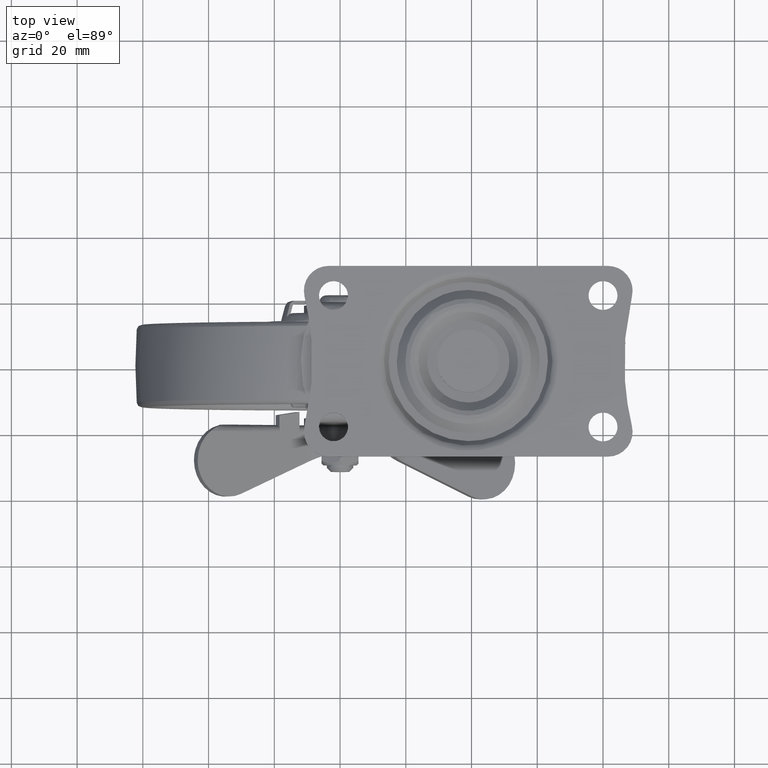
[diagram: clean part render]
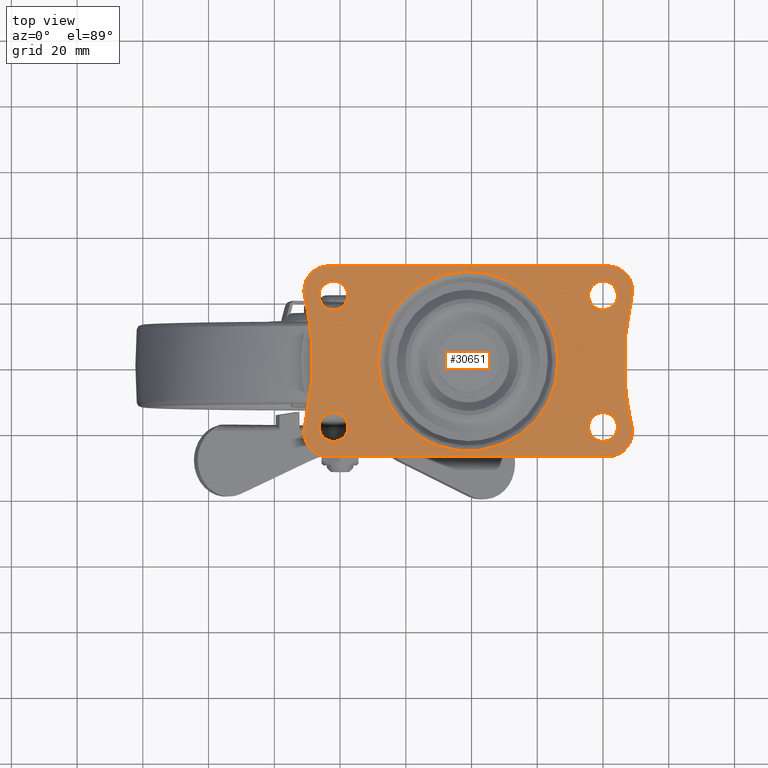
[diagram: same view with one face highlighted and labeled with its STEP entity id]
A machine part, top view. The second image highlights one B-rep face of the part: STEP entity #30651.
In plain terms, the highlighted face is a freeform B-spline surface patch.
Its self-contained STEP definition (entity closure, byte-faithful):
#26265=CARTESIAN_POINT('',(-4.972597613774385,23.244021207794479,85.500000000000000));
#26266=VERTEX_POINT('',#26265);
#26272=CARTESIAN_POINT('',(-6.400000000000000,20.0,85.500000000000000));
#26273=VERTEX_POINT('',#26272);
#26274=CARTESIAN_POINT('',(-4.972597613774385,23.244021207794479,85.500000000000000));
#26275=CARTESIAN_POINT('',(-5.393285155727978,22.859332881393559,85.499999999999929));
#26276=CARTESIAN_POINT('',(-6.126944385767979,21.861011191083119,85.500000000000000));
#26277=CARTESIAN_POINT('',(-6.401025243646099,20.646127910452002,85.500000000000142));
#26278=CARTESIAN_POINT('',(-6.400000000000000,20.0,85.500000000000000));
#26279=B_SPLINE_CURVE_WITH_KNOTS('',3,(#26274,#26275,#26276,#26277,#26278),.UNSPECIFIED.,.F.,.U.,(4,1,4),(0.000000100462238,1.709942680757175,3.647840710718621),.UNSPECIFIED.);
#26280=EDGE_CURVE('',#26266,#26273,#26279,.T.);
#26282=CARTESIAN_POINT('',(-1.999995359596425,15.600000000002449,85.500000000000000));
#26283=VERTEX_POINT('',#26282);
#26284=CARTESIAN_POINT('',(-6.400000000000000,20.0,85.500000000000000));
#26285=CARTESIAN_POINT('',(-6.401058096501203,19.351824670858552,85.499999999999972));
#26286=CARTESIAN_POINT('',(-6.181251046900533,18.380831884591942,85.500000000000099));
#26287=CARTESIAN_POINT('',(-5.516009738540491,17.301759607233471,85.500000000000057));
#26288=CARTESIAN_POINT('',(-4.767894267445042,16.515692348303030,85.499999999999872));
#26289=CARTESIAN_POINT('',(-3.619599102942595,15.807933617418540,85.499999999999943));
#26290=CARTESIAN_POINT('',(-2.576010479614628,15.599416306583141,85.499999999999957));
#26291=CARTESIAN_POINT('',(-1.999995359596425,15.600000000002449,85.500000000000000));
#26292=B_SPLINE_CURVE_WITH_KNOTS('',3,(#26284,#26285,#26286,#26287,#26288,#26289,#26290,#26291),.UNSPECIFIED.,.F.,.U.,(4,1,1,1,1,4),(0.000000453790209,1.943913193949037,2.915876060195883,3.779744292028530,5.183760033784806,6.911679890577998),.UNSPECIFIED.);
#26293=EDGE_CURVE('',#26273,#26283,#26292,.T.);
#26295=CARTESIAN_POINT('',(2.400000000000000,20.0,85.500000000000000));
#26296=VERTEX_POINT('',#26295);
#26297=CARTESIAN_POINT('',(-1.999995359596425,15.600000000002449,85.500000000000000));
#26298=CARTESIAN_POINT('',(-1.604018796670275,15.599859424816650,85.499999999999844));
#26299=CARTESIAN_POINT('',(-0.848138780554023,15.702749843455379,85.500000000000298));
#26300=CARTESIAN_POINT('',(0.123630603866510,16.105242926993100,85.499999999999758));
#26301=CARTESIAN_POINT('',(1.010910588933266,16.730059546941678,85.500000000000341));
#26302=CARTESIAN_POINT('',(1.700145158964369,17.529082206929210,85.499999999999829));
#26303=CARTESIAN_POINT('',(2.256097337983337,18.668315929265560,85.500000000000171));
#26304=CARTESIAN_POINT('',(2.400373835175241,19.495981843009730,85.499999999999872));
#26305=CARTESIAN_POINT('',(2.400000000000000,20.0,85.500000000000000));
#26306=B_SPLINE_CURVE_WITH_KNOTS('',3,(#26297,#26298,#26299,#26300,#26301,#26302,#26303,#26304,#26305),.UNSPECIFIED.,.F.,.U.,(4,1,1,1,1,1,4),(0.000000460141260,1.187911865419256,2.267926155748829,3.131933689348136,4.427776626393058,5.399748828108492,6.911674659631110),.UNSPECIFIED.);
#26307=EDGE_CURVE('',#26283,#26296,#26306,.T.);
#26309=CARTESIAN_POINT('',(1.068699980584120,23.153263424461141,85.500000000000000));
#26310=VERTEX_POINT('',#26309);
#26311=CARTESIAN_POINT('',(2.400000000000000,20.0,85.500000000000000));
#26312=CARTESIAN_POINT('',(2.400493743976085,20.549377756810522,85.500000000000114));
#26313=CARTESIAN_POINT('',(2.177581816635315,21.720832379546231,85.499999999999929));
#26314=CARTESIAN_POINT('',(1.515493619946017,22.719570130415029,85.500000000000071));
#26315=CARTESIAN_POINT('',(1.068699980584120,23.153263424461141,85.500000000000000));
#26316=B_SPLINE_CURVE_WITH_KNOTS('',3,(#26311,#26312,#26313,#26314,#26315),.UNSPECIFIED.,.F.,.U.,(4,1,4),(0.000000119753321,1.647984335365170,3.515639993694573),.UNSPECIFIED.);
#26317=EDGE_CURVE('',#26296,#26310,#26316,.T.);
#26352=CARTESIAN_POINT('',(-2.000004640403567,24.399999999997561,85.500000000000000));
#26353=VERTEX_POINT('',#26352);
#26354=CARTESIAN_POINT('',(1.068699980584120,23.153263424461141,85.500000000000000));
#26355=CARTESIAN_POINT('',(0.688663337831301,23.523663209160780,85.499999999999957));
#26356=CARTESIAN_POINT('',(-0.267212886981123,24.164005809754961,85.500000000000384));
#26357=CARTESIAN_POINT('',(-1.398533441181969,24.400752617487932,85.499999999999773));
#26358=CARTESIAN_POINT('',(-2.000004640403567,24.399999999997561,85.500000000000000));
#26359=B_SPLINE_CURVE_WITH_KNOTS('',3,(#26354,#26355,#26356,#26357,#26358),.UNSPECIFIED.,.F.,.U.,(4,1,4),(0.000000100950116,1.591919649958460,3.396041165370638),.UNSPECIFIED.);
#26360=EDGE_CURVE('',#26310,#26353,#26359,.T.);
#26362=CARTESIAN_POINT('',(-2.000004640403567,24.399999999997561,85.500000000000000));
#26363=CARTESIAN_POINT('',(-2.578060384997252,24.400681831259728,85.500000000000341));
#26364=CARTESIAN_POINT('',(-3.665374584005662,24.182233476178460,85.499999999999446));
#26365=CARTESIAN_POINT('',(-4.596828426506486,23.588872447011049,85.500000000000426));
#26366=CARTESIAN_POINT('',(-4.972597613774385,23.244021207794479,85.500000000000000));
#26367=B_SPLINE_CURVE_WITH_KNOTS('',3,(#26362,#26363,#26364,#26365,#26366),.UNSPECIFIED.,.F.,.U.,(4,1,4),(0.000000111657461,1.733879555445315,3.263834434709195),.UNSPECIFIED.);
#26368=EDGE_CURVE('',#26353,#26266,#26367,.T.);
#26457=CARTESIAN_POINT('',(77.027394386225609,23.244021207794479,85.500000000000000));
#26458=VERTEX_POINT('',#26457);
#26464=CARTESIAN_POINT('',(75.599992000000000,20.0,85.500000000000000));
#26465=VERTEX_POINT('',#26464);
#26466=CARTESIAN_POINT('',(77.027394386225609,23.244021207794479,85.500000000000000));
#26467=CARTESIAN_POINT('',(76.606706838514214,22.859332568886099,85.499999999999886));
#26468=CARTESIAN_POINT('',(75.873047676994702,21.861011595931860,85.500000000000242));
#26469=CARTESIAN_POINT('',(75.598966784040044,20.646127809803801,85.499999999999886));
#26470=CARTESIAN_POINT('',(75.599992000000000,20.0,85.500000000000000));
#26471=B_SPLINE_CURVE_WITH_KNOTS('',3,(#26466,#26467,#26468,#26469,#26470),.UNSPECIFIED.,.F.,.U.,(4,1,4),(0.000000100463556,1.709942680757738,3.647840710718600),.UNSPECIFIED.);
#26472=EDGE_CURVE('',#26458,#26465,#26471,.T.);
#26474=CARTESIAN_POINT('',(79.999996640403580,15.600000000002449,85.500000000000000));
#26475=VERTEX_POINT('',#26474);
#26476=CARTESIAN_POINT('',(75.599992000000000,20.0,85.500000000000000));
#26477=CARTESIAN_POINT('',(75.599783752835179,19.532010594136970,85.500000000000028));
#26478=CARTESIAN_POINT('',(75.756373504388080,18.560231574206359,85.500000000000085));
#26479=CARTESIAN_POINT('',(76.462212483641480,17.239033719432911,85.499999999999773));
#26480=CARTESIAN_POINT('',(77.463910273512141,16.331570671551098,85.500000000000369));
#26481=CARTESIAN_POINT('',(78.668322605253394,15.743909639353211,85.499999999999574));
#26482=CARTESIAN_POINT('',(79.495975399131112,15.599628591205510,85.500000000000270));
#26483=CARTESIAN_POINT('',(79.999996640403580,15.600000000002449,85.500000000000000));
#26484=B_SPLINE_CURVE_WITH_KNOTS('',3,(#26476,#26477,#26478,#26479,#26480,#26481,#26482,#26483),.UNSPECIFIED.,.F.,.U.,(4,1,1,1,1,4),(0.000000453782085,1.403923765613697,2.915876060193221,4.427779982945244,5.399752912186087,6.911679890577974),.UNSPECIFIED.);
#26485=EDGE_CURVE('',#26465,#26475,#26484,.T.);
#26487=CARTESIAN_POINT('',(84.399992000000012,20.0,85.500000000000000));
#26488=VERTEX_POINT('',#26487);
#26489=CARTESIAN_POINT('',(79.999996640403580,15.600000000002449,85.500000000000000));
#26490=CARTESIAN_POINT('',(80.576052455176310,15.599465771141871,85.500000000000043));
#26491=CARTESIAN_POINT('',(81.475492152860198,15.779279810999800,85.499999999999829));
#26492=CARTESIAN_POINT('',(82.713048846329400,16.460464747852988,85.499999999999929));
#26493=CARTESIAN_POINT('',(83.591298872677669,17.338561865424460,85.500000000000426));
#26494=CARTESIAN_POINT('',(84.243637017796360,18.596281492250171,85.499999999999389));
#26495=CARTESIAN_POINT('',(84.400323596427768,19.496006144316130,85.500000000000227));
#26496=CARTESIAN_POINT('',(84.399992000000012,20.0,85.500000000000000));
#26497=B_SPLINE_CURVE_WITH_KNOTS('',3,(#26489,#26490,#26491,#26492,#26493,#26494,#26495,#26496),.UNSPECIFIED.,.F.,.U.,(4,1,1,1,1,4),(0.000000460139663,1.727919010387877,2.699934121718611,4.211740996627755,5.399748828107682,6.911674659631200),.UNSPECIFIED.);
#26498=EDGE_CURVE('',#26475,#26488,#26497,.T.);
#26500=CARTESIAN_POINT('',(83.068691980584134,23.153263424461141,85.500000000000000));
#26501=VERTEX_POINT('',#26500);
#26502=CARTESIAN_POINT('',(84.399992000000012,20.0,85.500000000000000));
#26503=CARTESIAN_POINT('',(84.400146674911355,20.402847568519270,85.500000000000099));
#26504=CARTESIAN_POINT('',(84.303722709488241,21.098517536157619,85.499999999999915));
#26505=CARTESIAN_POINT('',(83.872965402624317,22.194660361078331,85.500000000000014));
#26506=CARTESIAN_POINT('',(83.410070792888320,22.821389295342790,85.500000000000171));
#26507=CARTESIAN_POINT('',(83.068691980584134,23.153263424461141,85.500000000000000));
#26508=B_SPLINE_CURVE_WITH_KNOTS('',3,(#26502,#26503,#26504,#26505,#26506,#26507),.UNSPECIFIED.,.F.,.U.,(4,1,1,4),(0.000000119753823,1.208505856130416,2.087379452037267,3.515639993694564),.UNSPECIFIED.);
#26509=EDGE_CURVE('',#26488,#26501,#26508,.T.);
#26545=CARTESIAN_POINT('',(79.999987359596446,24.399999999997551,85.500000000000000));
#26546=VERTEX_POINT('',#26545);
#26547=CARTESIAN_POINT('',(83.068691980584134,23.153263424461141,85.500000000000000));
#26548=CARTESIAN_POINT('',(82.688681855210334,23.523704755354370,85.500000000000028));
#26549=CARTESIAN_POINT('',(81.732738083774407,24.163942014817991,85.499999999999886));
#26550=CARTESIAN_POINT('',(80.601474631195003,24.400774931589758,85.500000000000071));
#26551=CARTESIAN_POINT('',(79.999987359596446,24.399999999997551,85.500000000000000));
#26552=B_SPLINE_CURVE_WITH_KNOTS('',3,(#26547,#26548,#26549,#26550,#26551),.UNSPECIFIED.,.F.,.U.,(4,1,4),(0.000000100947136,1.591919649957689,3.396041165370644),.UNSPECIFIED.);
#26553=EDGE_CURVE('',#26501,#26546,#26552,.T.);
#26555=CARTESIAN_POINT('',(79.999987359596446,24.399999999997551,85.500000000000000));
#26556=CARTESIAN_POINT('',(79.489968708727616,24.400340292029199,85.499999999999972));
#26557=CARTESIAN_POINT('',(78.402344904631519,24.208649726634761,85.500000000000099));
#26558=CARTESIAN_POINT('',(77.453134321402146,23.635013190940711,85.499999999999943));
#26559=CARTESIAN_POINT('',(77.027394386225609,23.244021207794479,85.500000000000000));
#26560=B_SPLINE_CURVE_WITH_KNOTS('',3,(#26555,#26556,#26557,#26558,#26559),.UNSPECIFIED.,.F.,.U.,(4,1,4),(0.000000111657821,1.529954990833674,3.263834434709202),.UNSPECIFIED.);
#26561=EDGE_CURVE('',#26546,#26458,#26560,.T.);
#26652=CARTESIAN_POINT('',(-4.972597613774383,-16.755978792205529,85.500000000000000));
#26653=VERTEX_POINT('',#26652);
#26659=CARTESIAN_POINT('',(-6.400000000000000,-20.0,85.500000000000000));
#26660=VERTEX_POINT('',#26659);
#26661=CARTESIAN_POINT('',(-4.972597613774383,-16.755978792205529,85.500000000000000));
#26662=CARTESIAN_POINT('',(-5.393286779606871,-17.140668381612699,85.499999999999957));
#26663=CARTESIAN_POINT('',(-6.126938753429259,-18.138988280292811,85.499999999999929));
#26664=CARTESIAN_POINT('',(-6.401030044556166,-19.353871961900801,85.500000000000199));
#26665=CARTESIAN_POINT('',(-6.400000000000000,-20.0,85.500000000000000));
#26666=B_SPLINE_CURVE_WITH_KNOTS('',3,(#26661,#26662,#26663,#26664,#26665),.UNSPECIFIED.,.F.,.U.,(4,1,4),(0.000000100462849,1.709942680757579,3.647840710718623),.UNSPECIFIED.);
#26667=EDGE_CURVE('',#26653,#26660,#26666,.T.);
#26669=CARTESIAN_POINT('',(-1.999995359596422,-24.399999999997551,85.500000000000000));
#26670=VERTEX_POINT('',#26669);
#26671=CARTESIAN_POINT('',(-6.400000000000000,-20.0,85.500000000000000));
#26672=CARTESIAN_POINT('',(-6.400140211704484,-20.395980939981939,85.500000000000128));
#26673=CARTESIAN_POINT('',(-6.297253674191180,-21.151858316100071,85.500000000000000));
#26674=CARTESIAN_POINT('',(-5.894756893337026,-22.123631918175700,85.499999999999957));
#26675=CARTESIAN_POINT('',(-5.311548080003965,-22.951677402191109,85.499999999999972));
#26676=CARTESIAN_POINT('',(-4.666614052868426,-23.536228440149969,85.500000000000313));
#26677=CARTESIAN_POINT('',(-3.861636479743811,-24.018686656684181,85.499999999999488));
#26678=CARTESIAN_POINT('',(-3.007931381503614,-24.324180586071598,85.500000000000014));
#26679=CARTESIAN_POINT('',(-2.323964327101548,-24.400043016554250,85.500000000000114));
#26680=CARTESIAN_POINT('',(-1.999995359596422,-24.399999999997551,85.500000000000000));
#26681=B_SPLINE_CURVE_WITH_KNOTS('',3,(#26671,#26672,#26673,#26674,#26675,#26676,#26677,#26678,#26679,#26680),.UNSPECIFIED.,.F.,.U.,(4,1,1,1,1,1,1,4),(0.000000453789881,1.187912758830450,2.267927866002376,3.131936056362451,4.211744186620757,4.859763486358876,5.939740086029179,6.911679890578010),.UNSPECIFIED.);
#26682=EDGE_CURVE('',#26660,#26670,#26681,.T.);
#26684=CARTESIAN_POINT('',(2.400000000000000,-20.0,85.500000000000000));
#26685=VERTEX_POINT('',#26684);
#26686=CARTESIAN_POINT('',(-1.999995359596422,-24.399999999997551,85.500000000000000));
#26687=CARTESIAN_POINT('',(-1.604018070988030,-24.400140002645202,85.499999999999915));
#26688=CARTESIAN_POINT('',(-0.848138092286618,-24.297252546750151,85.500000000000171));
#26689=CARTESIAN_POINT('',(0.123644327151811,-23.894768202028850,85.499999999999872));
#26690=CARTESIAN_POINT('',(0.892517140393625,-23.353169592628539,85.500000000000469));
#26691=CARTESIAN_POINT('',(1.491100020361700,-22.724459387603780,85.499999999999332));
#26692=CARTESIAN_POINT('',(1.994275285402152,-21.929939717295252,85.500000000000384));
#26693=CARTESIAN_POINT('',(2.324175806366636,-21.007928525039169,85.500000000000199));
#26694=CARTESIAN_POINT('',(2.400043798904586,-20.323970120633241,85.499999999999716));
#26695=CARTESIAN_POINT('',(2.400000000000000,-20.0,85.500000000000000));
#26696=B_SPLINE_CURVE_WITH_KNOTS('',3,(#26686,#26687,#26688,#26689,#26690,#26691,#26692,#26693,#26694,#26695),.UNSPECIFIED.,.F.,.U.,(4,1,1,1,1,1,1,4),(0.000000460142672,1.187911865420515,2.267926155749878,3.131933689348963,3.995801264283309,4.859759805274024,5.939735586911391,6.911674659631111),.UNSPECIFIED.);
#26697=EDGE_CURVE('',#26670,#26685,#26696,.T.);
#26699=CARTESIAN_POINT('',(1.068699980584120,-16.846736575538859,85.500000000000000));
#26700=VERTEX_POINT('',#26699);
#26701=CARTESIAN_POINT('',(2.400000000000000,-20.0,85.500000000000000));
#26702=CARTESIAN_POINT('',(2.400512308151452,-19.450608044643189,85.500000000000099));
#26703=CARTESIAN_POINT('',(2.177493738186855,-18.279221008446459,85.500000000000057));
#26704=CARTESIAN_POINT('',(1.515569693957696,-17.280379712169228,85.499999999999886));
#26705=CARTESIAN_POINT('',(1.068699980584120,-16.846736575538859,85.500000000000000));
#26706=B_SPLINE_CURVE_WITH_KNOTS('',3,(#26701,#26702,#26703,#26704,#26705),.UNSPECIFIED.,.F.,.U.,(4,1,4),(0.000000119753361,1.647984335365448,3.515639993694568),.UNSPECIFIED.);
#26707=EDGE_CURVE('',#26685,#26700,#26706,.T.);
#26742=CARTESIAN_POINT('',(-2.000004640403565,-15.600000000002449,85.500000000000000));
#26743=VERTEX_POINT('',#26742);
#26744=CARTESIAN_POINT('',(1.068699980584120,-16.846736575538859,85.500000000000000));
#26745=CARTESIAN_POINT('',(0.688690019800661,-16.476294787650680,85.499999999999773));
#26746=CARTESIAN_POINT('',(-0.267253139788307,-15.836058840220209,85.500000000000583));
#26747=CARTESIAN_POINT('',(-1.398518630204080,-15.599224702613251,85.499999999999616));
#26748=CARTESIAN_POINT('',(-2.000004640403565,-15.600000000002449,85.500000000000000));
#26749=B_SPLINE_CURVE_WITH_KNOTS('',3,(#26744,#26745,#26746,#26747,#26748),.UNSPECIFIED.,.F.,.U.,(4,1,4),(0.000000100950109,1.591919649958433,3.396041165370634),.UNSPECIFIED.);
#26750=EDGE_CURVE('',#26700,#26743,#26749,.T.);
#26752=CARTESIAN_POINT('',(-2.000004640403565,-15.600000000002449,85.500000000000000));
#26753=CARTESIAN_POINT('',(-2.578042558163824,-15.599361540187410,85.499999999999957));
#26754=CARTESIAN_POINT('',(-3.665417967432006,-15.817701058541161,85.499999999999986));
#26755=CARTESIAN_POINT('',(-4.596802162024966,-16.411165451788339,85.500000000000085));
#26756=CARTESIAN_POINT('',(-4.972597613774383,-16.755978792205529,85.500000000000000));
#26757=B_SPLINE_CURVE_WITH_KNOTS('',3,(#26752,#26753,#26754,#26755,#26756),.UNSPECIFIED.,.F.,.U.,(4,1,4),(0.000000111657518,1.733879555445327,3.263834434709199),.UNSPECIFIED.);
#26758=EDGE_CURVE('',#26743,#26653,#26757,.T.);
#26850=CARTESIAN_POINT('',(77.027394386225609,-16.755978792205529,85.500000000000000));
#26851=VERTEX_POINT('',#26850);
#26857=CARTESIAN_POINT('',(75.599992000000000,-20.0,85.500000000000000));
#26858=VERTEX_POINT('',#26857);
#26859=CARTESIAN_POINT('',(77.027394386225609,-16.755978792205529,85.500000000000000));
#26860=CARTESIAN_POINT('',(76.662907947195350,-17.089477146961482,85.500000000000099));
#26861=CARTESIAN_POINT('',(76.261370046748283,-17.607041494472131,85.499999999999957));
#26862=CARTESIAN_POINT('',(75.742203787019477,-18.708426262585469,85.499999999999915));
#26863=CARTESIAN_POINT('',(75.599379548711752,-19.429906369728549,85.500000000000000));
#26864=CARTESIAN_POINT('',(75.599992000000000,-20.0,85.500000000000000));
#26865=B_SPLINE_CURVE_WITH_KNOTS('',3,(#26859,#26860,#26861,#26862,#26863,#26864),.UNSPECIFIED.,.F.,.U.,(4,1,1,4),(0.000000100461842,1.481963510159120,1.937896383616773,3.647840710718633),.UNSPECIFIED.);
#26866=EDGE_CURVE('',#26851,#26858,#26865,.T.);
#26868=CARTESIAN_POINT('',(79.999996640403566,-24.399999999997551,85.500000000000000));
#26869=VERTEX_POINT('',#26868);
#26870=CARTESIAN_POINT('',(75.599992000000000,-20.0,85.500000000000000));
#26871=CARTESIAN_POINT('',(75.599401197827078,-20.576044114681121,85.500000000000185));
#26872=CARTESIAN_POINT('',(75.793647321303681,-21.547518305552380,85.499999999999432));
#26873=CARTESIAN_POINT('',(76.434026537312704,-22.645893017741471,85.500000000000753));
#26874=CARTESIAN_POINT('',(77.107489817710146,-23.353171223380748,85.499999999998806));
#26875=CARTESIAN_POINT('',(77.876355866778283,-23.894766134225531,85.500000000000924));
#26876=CARTESIAN_POINT('',(78.848139201716492,-24.297250443257418,85.500000000000227));
#26877=CARTESIAN_POINT('',(79.604015734593261,-24.400146807299851,85.499999999999204));
#26878=CARTESIAN_POINT('',(79.999996640403566,-24.399999999997551,85.500000000000000));
#26879=B_SPLINE_CURVE_WITH_KNOTS('',3,(#26870,#26871,#26872,#26873,#26874,#26875,#26876,#26877,#26878),.UNSPECIFIED.,.F.,.U.,(4,1,1,1,1,1,4),(0.000000453793261,1.727920312613144,2.915876060197656,3.779744292029767,4.643752479137986,5.723767586565645,6.911679890577959),.UNSPECIFIED.);
#26880=EDGE_CURVE('',#26858,#26869,#26879,.T.);
#26882=CARTESIAN_POINT('',(84.399992000000012,-20.0,85.500000000000000));
#26883=VERTEX_POINT('',#26882);
#26884=CARTESIAN_POINT('',(79.999996640403566,-24.399999999997551,85.500000000000000));
#26885=CARTESIAN_POINT('',(80.395973019348247,-24.400144609510281,85.500000000000043));
#26886=CARTESIAN_POINT('',(81.079817637586231,-24.306971348522929,85.500000000000000));
#26887=CARTESIAN_POINT('',(82.193684587907271,-23.877681147667271,85.500000000000043));
#26888=CARTESIAN_POINT('',(83.073861420797172,-23.224876407859529,85.499999999999957));
#26889=CARTESIAN_POINT('',(83.718997646751419,-22.397660666242150,85.500000000000028));
#26890=CARTESIAN_POINT('',(84.235003165071646,-21.403508346547952,85.499999999999929));
#26891=CARTESIAN_POINT('',(84.400669013990253,-20.576091023206370,85.499999999999972));
#26892=CARTESIAN_POINT('',(84.399992000000012,-20.0,85.500000000000000));
#26893=B_SPLINE_CURVE_WITH_KNOTS('',3,(#26884,#26885,#26886,#26887,#26888,#26889,#26890,#26891,#26892),.UNSPECIFIED.,.F.,.U.,(4,1,1,1,1,1,4),(0.000000460142514,1.187911865420777,2.051915311974426,3.563769192848548,4.427776626393541,5.183756107355068,6.911674659631052),.UNSPECIFIED.);
#26894=EDGE_CURVE('',#26869,#26883,#26893,.T.);
#26896=CARTESIAN_POINT('',(83.068691980584134,-16.846736575538859,85.500000000000000));
#26897=VERTEX_POINT('',#26896);
#26898=CARTESIAN_POINT('',(84.399992000000012,-20.0,85.500000000000000));
#26899=CARTESIAN_POINT('',(84.400906699950298,-19.377300075288190,85.499999999999702));
#26900=CARTESIAN_POINT('',(84.146707863276362,-18.206341227774971,85.500000000000597));
#26901=CARTESIAN_POINT('',(83.462767094562210,-17.229525603813460,85.499999999999616));
#26902=CARTESIAN_POINT('',(83.068691980584134,-16.846736575538859,85.500000000000000));
#26903=B_SPLINE_CURVE_WITH_KNOTS('',3,(#26898,#26899,#26900,#26901,#26902),.UNSPECIFIED.,.F.,.U.,(4,1,4),(0.000000119752764,1.867655778083503,3.515639993694566),.UNSPECIFIED.);
#26904=EDGE_CURVE('',#26883,#26897,#26903,.T.);
#26940=CARTESIAN_POINT('',(79.999987359596446,-15.600000000002449,85.500000000000000));
#26941=VERTEX_POINT('',#26940);
#26942=CARTESIAN_POINT('',(83.068691980584134,-16.846736575538859,85.500000000000000));
#26943=CARTESIAN_POINT('',(82.688682905218258,-16.476296403128892,85.500000000000028));
#26944=CARTESIAN_POINT('',(81.732737884419194,-15.836056998431630,85.500000000000071));
#26945=CARTESIAN_POINT('',(80.601473605317935,-15.599225132064340,85.499999999999886));
#26946=CARTESIAN_POINT('',(79.999987359596446,-15.600000000002449,85.500000000000000));
#26947=B_SPLINE_CURVE_WITH_KNOTS('',3,(#26942,#26943,#26944,#26945,#26946),.UNSPECIFIED.,.F.,.U.,(4,1,4),(0.000000100947409,1.591919649956932,3.396041165370641),.UNSPECIFIED.);
#26948=EDGE_CURVE('',#26897,#26941,#26947,.T.);
#26950=CARTESIAN_POINT('',(79.999987359596446,-15.600000000002449,85.500000000000000));
#26951=CARTESIAN_POINT('',(79.353822003408496,-15.598967746524631,85.499999999999659));
#26952=CARTESIAN_POINT('',(78.266958984848472,-15.844234880972390,85.500000000000341));
#26953=CARTESIAN_POINT('',(77.353134726556405,-16.457256995396449,85.499999999999886));
#26954=CARTESIAN_POINT('',(77.027394386225609,-16.755978792205529,85.500000000000000));
#26955=B_SPLINE_CURVE_WITH_KNOTS('',3,(#26950,#26951,#26952,#26953,#26954),.UNSPECIFIED.,.F.,.U.,(4,1,4),(0.000000111658356,1.937879445226281,3.263834434709203),.UNSPECIFIED.);
#26956=EDGE_CURVE('',#26941,#26851,#26955,.T.);
#27826=CARTESIAN_POINT('',(24.354742360984918,-23.077233383373361,85.500000000000000));
#27827=VERTEX_POINT('',#27826);
#27836=CARTESIAN_POINT('',(66.332074051357608,0.0,85.500000000000000));
#27837=VERTEX_POINT('',#27836);
#27838=CARTESIAN_POINT('',(66.332074051357608,0.0,85.500000000000000));
#27839=CARTESIAN_POINT('',(66.332972922540648,-2.432972656945411,85.500000000000099));
#27840=CARTESIAN_POINT('',(65.851665861058720,-6.005783916823102,85.500000000000000));
#27841=CARTESIAN_POINT('',(64.396656470265128,-10.258192836979060,85.499999999999957));
#27842=CARTESIAN_POINT('',(62.898021661124687,-13.422974673101249,85.500000000000085));
#27843=CARTESIAN_POINT('',(61.041323823498097,-16.309368244119611,85.500000000000014));
#27844=CARTESIAN_POINT('',(58.461968978615843,-19.314393251128791,85.500000000000313));
#27845=CARTESIAN_POINT('',(56.004703664306092,-21.486144448788590,85.499999999999119));
#27846=CARTESIAN_POINT('',(52.995942251433597,-23.556843670056899,85.500000000001677));
#27847=CARTESIAN_POINT('',(49.143767962974337,-25.571624268915230,85.499999999999204));
#27848=CARTESIAN_POINT('',(44.443389771467132,-26.952243695770839,85.500000000000398));
#27849=CARTESIAN_POINT('',(39.512735610271733,-27.436252444186010,85.499999999999588));
#27850=CARTESIAN_POINT('',(35.170968718621083,-27.191019879235959,85.500000000000782));
#27851=CARTESIAN_POINT('',(29.888701899086350,-25.991257713343849,85.499999999998735));
#27852=CARTESIAN_POINT('',(26.344344779052161,-24.340781440507730,85.500000000001251));
#27853=CARTESIAN_POINT('',(24.354742360984918,-23.077233383373361,85.500000000000000));
#27854=B_SPLINE_CURVE_WITH_KNOTS('',3,(#27838,#27839,#27840,#27841,#27842,#27843,#27844,#27845,#27846,#27847,#27848,#27849,#27850,#27851,#27852,#27853),.UNSPECIFIED.,.F.,.U.,(4,1,1,1,1,1,1,1,1,1,1,1,1,4),(0.000000327605214,7.298599222710365,10.719878692813790,13.456890476948420,17.790493089441000,20.983647201681489,25.317220857438201,27.598042859065991,31.931499875497071,38.317885437488663,42.195315151251179,46.757018903879462,51.318697646548763,58.389214685004312),.UNSPECIFIED.);
#27855=EDGE_CURVE('',#27837,#27827,#27854,.T.);
#27857=CARTESIAN_POINT('',(15.922766626519939,14.645257633091060,85.500000000000000));
#27858=VERTEX_POINT('',#27857);
#27859=CARTESIAN_POINT('',(15.922766626519939,14.645257633091060,85.500000000000000));
#27860=CARTESIAN_POINT('',(16.806850811228951,16.038672386367050,85.499999999999986));
#27861=CARTESIAN_POINT('',(18.491689232988559,18.226840495244620,85.499999999999943));
#27862=CARTESIAN_POINT('',(21.476679551697469,21.085615499895521,85.499999999999972));
#27863=CARTESIAN_POINT('',(25.047883118613559,23.678589284352690,85.499999999999744));
#27864=CARTESIAN_POINT('',(29.620668304707991,25.869617114657441,85.500000000000156));
#27865=CARTESIAN_POINT('',(34.802323575375191,27.168102549401461,85.499999999999858));
#27866=CARTESIAN_POINT('',(40.224164183329570,27.490633871080259,85.499999999999616));
#27867=CARTESIAN_POINT('',(45.611771827291143,26.721188774473760,85.500000000001577));
#27868=CARTESIAN_POINT('',(50.892779088547833,24.804431757802121,85.499999999998096));
#27869=CARTESIAN_POINT('',(55.385783156311540,22.084314748013700,85.500000000003325));
#27870=CARTESIAN_POINT('',(59.412913039255741,18.439787565557051,85.499999999995126));
#27871=CARTESIAN_POINT('',(62.272038240479297,14.591661450656350,85.500000000001634));
#27872=CARTESIAN_POINT('',(64.385266857325618,10.409457312548190,85.499999999999218));
#27873=CARTESIAN_POINT('',(65.905565706625922,5.775638239538528,85.500000000001222));
#27874=CARTESIAN_POINT('',(66.332482247287103,2.108641600751897,85.499999999998181));
#27875=CARTESIAN_POINT('',(66.332074051357608,0.0,85.500000000000000));
#27876=B_SPLINE_CURVE_WITH_KNOTS('',3,(#27859,#27860,#27861,#27862,#27863,#27864,#27865,#27866,#27867,#27868,#27869,#27870,#27871,#27872,#27873,#27874,#27875),.UNSPECIFIED.,.F.,.U.,(4,1,1,1,1,1,1,1,1,1,1,1,1,1,4),(0.000000275633738,4.950622372032782,8.251202926085114,12.376855237615500,18.152744897665279,23.378534159949321,28.329367173127199,34.380318313170449,39.605854037172762,45.106772075870232,50.057532110927703,55.833427579169090,59.409022798811648,64.084756077153941,70.410616361353163),.UNSPECIFIED.);
#27877=EDGE_CURVE('',#27858,#27837,#27876,.T.);
#27913=CARTESIAN_POINT('',(11.667925948642401,0.0,85.500000000000000));
#27914=VERTEX_POINT('',#27913);
#27915=CARTESIAN_POINT('',(11.667925948642401,0.0,85.500000000000000));
#27916=CARTESIAN_POINT('',(11.667213357334020,2.334584707340727,85.500000000000938));
#27917=CARTESIAN_POINT('',(12.114232694832291,5.795673595444487,85.499999999999019));
#27918=CARTESIAN_POINT('',(13.728774888616970,10.698567560479701,85.500000000000753));
#27919=CARTESIAN_POINT('',(15.016797101786141,13.218011280540440,85.499999999999943));
#27920=CARTESIAN_POINT('',(15.922766626519939,14.645257633091060,85.500000000000000));
#27921=B_SPLINE_CURVE_WITH_KNOTS('',3,(#27915,#27916,#27917,#27918,#27919,#27920),.UNSPECIFIED.,.F.,.U.,(4,1,1,4),(0.000000025054788,7.003503909515223,10.384478566374881,15.455974022036850),.UNSPECIFIED.);
#27922=EDGE_CURVE('',#27914,#27858,#27921,.T.);
#27924=CARTESIAN_POINT('',(24.354742360984918,-23.077233383373361,85.500000000000000));
#27925=CARTESIAN_POINT('',(22.239694218222759,-21.735884786744592,85.500000000000071));
#27926=CARTESIAN_POINT('',(19.319691247607210,-19.260243238646080,85.499999999999972));
#27927=CARTESIAN_POINT('',(16.198486374472878,-15.235484585863921,85.500000000000213));
#27928=CARTESIAN_POINT('',(13.887875633568941,-11.185495719877609,85.499999999999588));
#27929=CARTESIAN_POINT('',(12.118219018082730,-6.082153436226111,85.500000000000767));
#27930=CARTESIAN_POINT('',(11.667633992295210,-2.003553846464661,85.499999999999375));
#27931=CARTESIAN_POINT('',(11.667925948642401,0.0,85.500000000000000));
#27932=B_SPLINE_CURVE_WITH_KNOTS('',3,(#27924,#27925,#27926,#27927,#27928,#27929,#27930,#27931),.UNSPECIFIED.,.F.,.U.,(4,1,1,1,1,4),(0.000000081858158,7.513318285512312,11.377320869000320,15.241246545412800,21.466624595605431,27.477268395593828),.UNSPECIFIED.);
#27933=EDGE_CURVE('',#27827,#27914,#27932,.T.);
#30321=CARTESIAN_POINT('',(-10.794594074284319,19.756758731484851,85.500000000000000));
#30322=VERTEX_POINT('',#30321);
#30328=CARTESIAN_POINT('',(-3.499990444322345,28.999999999994049,85.500000000000000));
#30329=VERTEX_POINT('',#30328);
#30330=CARTESIAN_POINT('',(-3.499990444322345,28.999999999994049,85.500000000000000));
#30331=CARTESIAN_POINT('',(-4.275778060091940,29.000416075007049,85.499999999999886));
#30332=CARTESIAN_POINT('',(-5.650740410721095,28.784666808581608,85.500000000000199));
#30333=CARTESIAN_POINT('',(-7.232387925602193,28.058855586297678,85.499999999999659));
#30334=CARTESIAN_POINT('',(-8.411433491306601,27.215946102054620,85.500000000000398));
#30335=CARTESIAN_POINT('',(-9.534142844062526,26.083621690396360,85.500000000000071));
#30336=CARTESIAN_POINT('',(-10.441519315277660,24.549475973812449,85.499999999999915));
#30337=CARTESIAN_POINT('',(-10.931646394461071,22.845571031353050,85.500000000000156));
#30338=CARTESIAN_POINT('',(-11.049560428936889,21.290974241603831,85.499999999999943));
#30339=CARTESIAN_POINT('',(-10.917606496345361,20.271176690173721,85.500000000000043));
#30340=CARTESIAN_POINT('',(-10.794594074284319,19.756758731484851,85.500000000000000));
#30341=B_SPLINE_CURVE_WITH_KNOTS('',3,(#30330,#30331,#30332,#30333,#30334,#30335,#30336,#30337,#30338,#30339,#30340),.UNSPECIFIED.,.F.,.U.,(4,1,1,1,1,1,1,1,4),(0.000000457882319,2.327257574948881,4.125601542031765,5.183463453012202,6.664532720857107,8.885900116956297,10.472681539577319,11.953665871198490,13.540426166289690),.UNSPECIFIED.);
#30342=EDGE_CURVE('',#30329,#30322,#30341,.T.);
#30367=CARTESIAN_POINT('',(-10.794595360556499,-19.756762057047951,85.500000000000000));
#30368=VERTEX_POINT('',#30367);
#30374=CARTESIAN_POINT('',(-10.794595360556499,-19.756762057047951,85.500000000000000));
#30375=CARTESIAN_POINT('',(-9.490360594843102,-14.302574288205170,85.499999999999901));
#30376=CARTESIAN_POINT('',(-8.306507801878258,-5.616847792846957,85.500000000000142));
#30377=CARTESIAN_POINT('',(-8.550557239746045,7.693818961214846,85.499999999999631));
#30378=CARTESIAN_POINT('',(-9.732228457125267,15.312568561689901,85.500000000000227));
#30379=CARTESIAN_POINT('',(-10.794594074284319,19.756758731484851,85.500000000000000));
#30380=B_SPLINE_CURVE_WITH_KNOTS('',3,(#30374,#30375,#30376,#30377,#30378,#30379),.UNSPECIFIED.,.F.,.U.,(4,1,1,4),(8.857512E-009,16.823655447946969,26.170102567738251,39.878266891231057),.UNSPECIFIED.);
#30381=EDGE_CURVE('',#30368,#30322,#30380,.T.);
#30402=CARTESIAN_POINT('',(-3.500000000000000,-29.0,85.500000000000000));
#30403=VERTEX_POINT('',#30402);
#30409=CARTESIAN_POINT('',(-10.794595360556499,-19.756762057047951,85.500000000000000));
#30410=CARTESIAN_POINT('',(-10.909363001489110,-20.236874554377490,85.499999999999957));
#30411=CARTESIAN_POINT('',(-11.062967769173630,-21.360289938291071,85.500000000000483));
#30412=CARTESIAN_POINT('',(-10.903667041131850,-23.130494873822009,85.499999999998906));
#30413=CARTESIAN_POINT('',(-10.244833844122351,-24.971226932148092,85.500000000001691));
#30414=CARTESIAN_POINT('',(-9.294201286600352,-26.346903876274549,85.499999999998579));
#30415=CARTESIAN_POINT('',(-8.142909047536053,-27.444580437596009,85.500000000000909));
#30416=CARTESIAN_POINT('',(-6.835493676936716,-28.298197341748629,85.499999999998820));
#30417=CARTESIAN_POINT('',(-5.192528513482412,-28.876492116995081,85.500000000002203));
#30418=CARTESIAN_POINT('',(-4.028916385062462,-29.000058147067421,85.499999999997456));
#30419=CARTESIAN_POINT('',(-3.500000000000000,-29.0,85.500000000000000));
#30420=B_SPLINE_CURVE_WITH_KNOTS('',3,(#30409,#30410,#30411,#30412,#30413,#30414,#30415,#30416,#30417,#30418,#30419),.UNSPECIFIED.,.F.,.U.,(4,1,1,1,1,1,1,1,4),(0.000000457873185,1.480929191065942,3.385103817655397,5.289292342936104,7.299110741729441,8.356965599643473,10.049522065117300,11.953654438804190,13.540413216422550),.UNSPECIFIED.);
#30421=EDGE_CURVE('',#30368,#30403,#30420,.T.);
#30433=CARTESIAN_POINT('',(81.499986764012007,-28.999999999998199,85.500000000000000));
#30434=VERTEX_POINT('',#30433);
#30440=CARTESIAN_POINT('',(81.499986764012007,-28.999999999998199,85.500000000000000));
#30441=CARTESIAN_POINT('',(-3.500000000000000,-29.0,85.500000000000000));
#30442=QUASI_UNIFORM_CURVE('',1,(#30440,#30441),.UNSPECIFIED.,.F.,.U.);
#30443=EDGE_CURVE('',#30434,#30403,#30442,.T.);
#30464=CARTESIAN_POINT('',(88.794588031726292,-19.756728233502852,85.500000000000000));
#30465=VERTEX_POINT('',#30464);
#30471=CARTESIAN_POINT('',(81.499986764012007,-28.999999999998199,85.500000000000000));
#30472=CARTESIAN_POINT('',(82.099405135243686,-29.000060063388620,85.500000000000156));
#30473=CARTESIAN_POINT('',(83.474688762615543,-28.834532892647481,85.499999999999602));
#30474=CARTESIAN_POINT('',(85.121649470136532,-28.148121695135039,85.500000000000981));
#30475=CARTESIAN_POINT('',(86.495581661829391,-27.150852437992210,85.499999999999034));
#30476=CARTESIAN_POINT('',(87.472532132279753,-26.122649132954770,85.500000000000512));
#30477=CARTESIAN_POINT('',(88.313124272334719,-24.767727606648130,85.499999999999687));
#30478=CARTESIAN_POINT('',(88.899266536111909,-23.130558495528010,85.500000000000611));
#30479=CARTESIAN_POINT('',(89.067824239471065,-21.395386126264221,85.499999999999162));
#30480=CARTESIAN_POINT('',(88.909342598010213,-20.236833772217778,85.500000000001322));
#30481=CARTESIAN_POINT('',(88.794588031726292,-19.756728233502852,85.500000000000000));
#30482=B_SPLINE_CURVE_WITH_KNOTS('',3,(#30471,#30472,#30473,#30474,#30475,#30476,#30477,#30478,#30479,#30480,#30481),.UNSPECIFIED.,.F.,.U.,(4,1,1,1,1,1,1,1,4),(0.000000457874075,1.798326589724969,4.125607417651441,5.289304934376357,6.875902319702383,8.356985494036808,10.049545988714460,12.059526660870770,13.540445450323871),.UNSPECIFIED.);
#30483=EDGE_CURVE('',#30434,#30465,#30482,.T.);
#30504=CARTESIAN_POINT('',(88.794599946689317,19.756778091586199,85.500000000000000));
#30505=VERTEX_POINT('',#30504);
#30511=CARTESIAN_POINT('',(88.794599946689317,19.756778091586199,85.500000000000000));
#30512=CARTESIAN_POINT('',(87.683928676815199,15.110583069671980,85.500000000000014));
#30513=CARTESIAN_POINT('',(86.342557277779562,6.248715916141575,85.500000000000071));
#30514=CARTESIAN_POINT('',(86.440393010242204,-7.079448637066355,85.499999999999986));
#30515=CARTESIAN_POINT('',(87.780522131338117,-15.514545641535630,85.500000000000028));
#30516=CARTESIAN_POINT('',(88.794588031726292,-19.756728233502852,85.500000000000000));
#30517=B_SPLINE_CURVE_WITH_KNOTS('',3,(#30511,#30512,#30513,#30514,#30515,#30516),.UNSPECIFIED.,.F.,.U.,(4,1,1,4),(8.864468E-009,14.331258393094240,26.793192645320239,39.878253304934042),.UNSPECIFIED.);
#30518=EDGE_CURVE('',#30505,#30465,#30517,.T.);
#30539=CARTESIAN_POINT('',(81.499987156711214,28.999999999998550,85.500000000000000));
#30540=VERTEX_POINT('',#30539);
#30546=CARTESIAN_POINT('',(88.794599946689317,19.756778091586199,85.500000000000000));
#30547=CARTESIAN_POINT('',(89.016780522830274,20.682682720901930,85.499999999999531));
#30548=CARTESIAN_POINT('',(89.086591774374455,22.296709727973472,85.500000000000938));
#30549=CARTESIAN_POINT('',(88.482213894194530,24.453133037791670,85.499999999999375));
#30550=CARTESIAN_POINT('',(87.552399614507308,26.050667703083128,85.499999999999702));
#30551=CARTESIAN_POINT('',(86.419713756669054,27.226058131230399,85.500000000001251));
#30552=CARTESIAN_POINT('',(85.111272166442490,28.133730055978361,85.499999999998266));
#30553=CARTESIAN_POINT('',(83.509762214422935,28.814627536751289,85.500000000001791));
#30554=CARTESIAN_POINT('',(82.205241601683525,29.000273785595301,85.499999999999361));
#30555=CARTESIAN_POINT('',(81.499987156711214,28.999999999998550,85.500000000000000));
#30556=B_SPLINE_CURVE_WITH_KNOTS('',3,(#30546,#30547,#30548,#30549,#30550,#30551,#30552,#30553,#30554,#30555),.UNSPECIFIED.,.F.,.U.,(4,1,1,1,1,1,1,4),(0.000000457889882,2.856181904817829,4.760355922386829,6.664532583396591,8.356973418803102,9.626391071947172,11.424739109626090,13.540425885922961),.UNSPECIFIED.);
#30557=EDGE_CURVE('',#30505,#30540,#30556,.T.);
#30570=CARTESIAN_POINT('',(-3.499990444322345,28.999999999994049,85.500000000000000));
#30571=CARTESIAN_POINT('',(81.499987156711214,28.999999999998550,85.500000000000000));
#30572=QUASI_UNIFORM_CURVE('',1,(#30570,#30571),.UNSPECIFIED.,.F.,.U.);
#30573=EDGE_CURVE('',#30329,#30540,#30572,.T.);
#30598=CARTESIAN_POINT('',(-15.994832434198370,-31.897099887584680,85.500000000000000));
#30599=CARTESIAN_POINT('',(93.994813082768928,-31.897099887584680,85.500000000000000));
#30600=CARTESIAN_POINT('',(-15.994832434198370,31.897101443264450,85.500000000000000));
#30601=CARTESIAN_POINT('',(93.994813082768928,31.897101443264450,85.500000000000000));
#30602=B_SPLINE_SURFACE_WITH_KNOTS('',1,1,((#30598,#30600),(#30599,#30601)),.UNSPECIFIED.,.F.,.F.,.U.,(2,2),(2,2),(0.0,109.989645516967300),(0.0,63.794201330849127),.UNSPECIFIED.);
#30603=ORIENTED_EDGE('',*,*,#30573,.F.);
#30604=ORIENTED_EDGE('',*,*,#30342,.T.);
#30605=ORIENTED_EDGE('',*,*,#30381,.F.);
#30606=ORIENTED_EDGE('',*,*,#30421,.T.);
#30607=ORIENTED_EDGE('',*,*,#30443,.F.);
#30608=ORIENTED_EDGE('',*,*,#30483,.T.);
#30609=ORIENTED_EDGE('',*,*,#30518,.F.);
#30610=ORIENTED_EDGE('',*,*,#30557,.T.);
#30611=EDGE_LOOP('',(#30603,#30604,#30605,#30606,#30607,#30608,#30609,#30610));
#30612=FACE_OUTER_BOUND('',#30611,.T.);
#30613=ORIENTED_EDGE('',*,*,#27922,.T.);
#30614=ORIENTED_EDGE('',*,*,#27877,.T.);
#30615=ORIENTED_EDGE('',*,*,#27855,.T.);
#30616=ORIENTED_EDGE('',*,*,#27933,.T.);
#30617=EDGE_LOOP('',(#30613,#30614,#30615,#30616));
#30618=FACE_BOUND('',#30617,.T.);
#30619=ORIENTED_EDGE('',*,*,#26293,.F.);
#30620=ORIENTED_EDGE('',*,*,#26280,.F.);
#30621=ORIENTED_EDGE('',*,*,#26368,.F.);
#30622=ORIENTED_EDGE('',*,*,#26360,.F.);
#30623=ORIENTED_EDGE('',*,*,#26317,.F.);
#30624=ORIENTED_EDGE('',*,*,#26307,.F.);
#30625=EDGE_LOOP('',(#30619,#30620,#30621,#30622,#30623,#30624));
#30626=FACE_BOUND('',#30625,.T.);
#30627=ORIENTED_EDGE('',*,*,#26880,.F.);
#30628=ORIENTED_EDGE('',*,*,#26866,.F.);
#30629=ORIENTED_EDGE('',*,*,#26956,.F.);
#30630=ORIENTED_EDGE('',*,*,#26948,.F.);
#30631=ORIENTED_EDGE('',*,*,#26904,.F.);
#30632=ORIENTED_EDGE('',*,*,#26894,.F.);
#30633=EDGE_LOOP('',(#30627,#30628,#30629,#30630,#30631,#30632));
#30634=FACE_BOUND('',#30633,.T.);
#30635=ORIENTED_EDGE('',*,*,#26682,.F.);
#30636=ORIENTED_EDGE('',*,*,#26667,.F.);
#30637=ORIENTED_EDGE('',*,*,#26758,.F.);
#30638=ORIENTED_EDGE('',*,*,#26750,.F.);
#30639=ORIENTED_EDGE('',*,*,#26707,.F.);
#30640=ORIENTED_EDGE('',*,*,#26697,.F.);
#30641=EDGE_LOOP('',(#30635,#30636,#30637,#30638,#30639,#30640));
#30642=FACE_BOUND('',#30641,.T.);
#30643=ORIENTED_EDGE('',*,*,#26485,.F.);
#30644=ORIENTED_EDGE('',*,*,#26472,.F.);
#30645=ORIENTED_EDGE('',*,*,#26561,.F.);
#30646=ORIENTED_EDGE('',*,*,#26553,.F.);
#30647=ORIENTED_EDGE('',*,*,#26509,.F.);
#30648=ORIENTED_EDGE('',*,*,#26498,.F.);
#30649=EDGE_LOOP('',(#30643,#30644,#30645,#30646,#30647,#30648));
#30650=FACE_BOUND('',#30649,.T.);
#30651=ADVANCED_FACE('',(#30612,#30618,#30626,#30634,#30642,#30650),#30602,.T.);